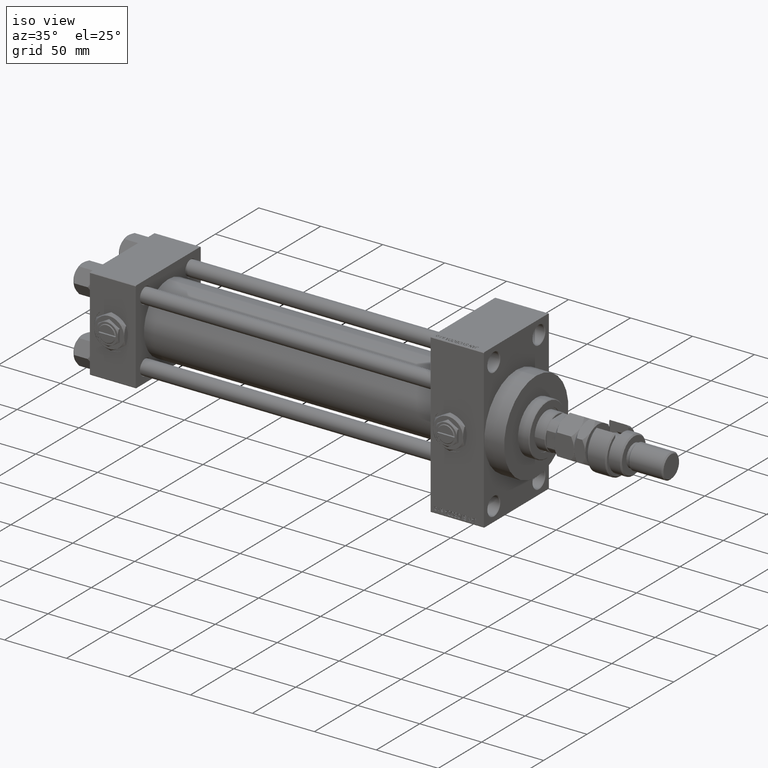
[diagram: clean part render]
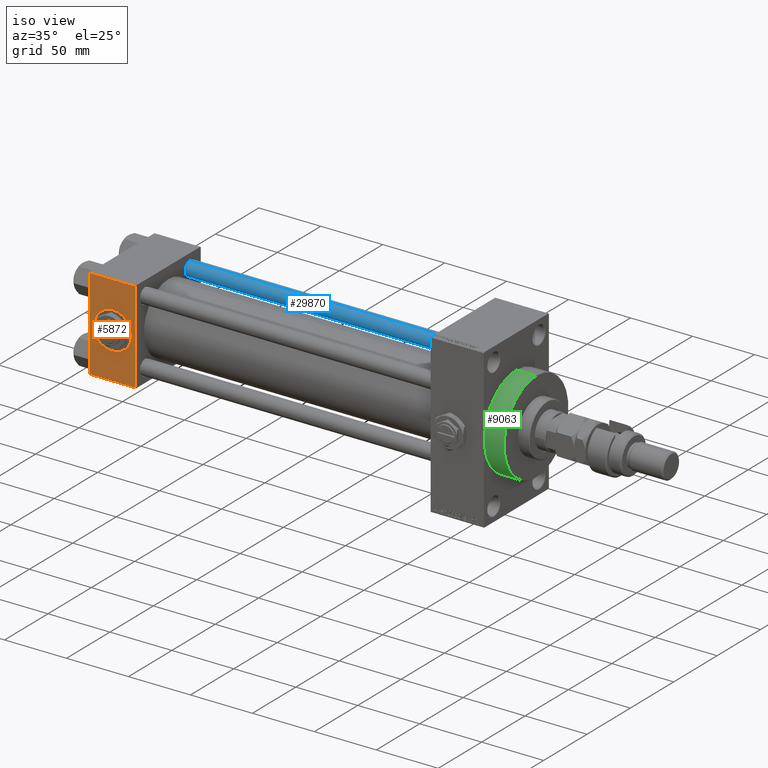
[diagram: same view with three faces highlighted in distinct colors, each labeled with its STEP entity id]
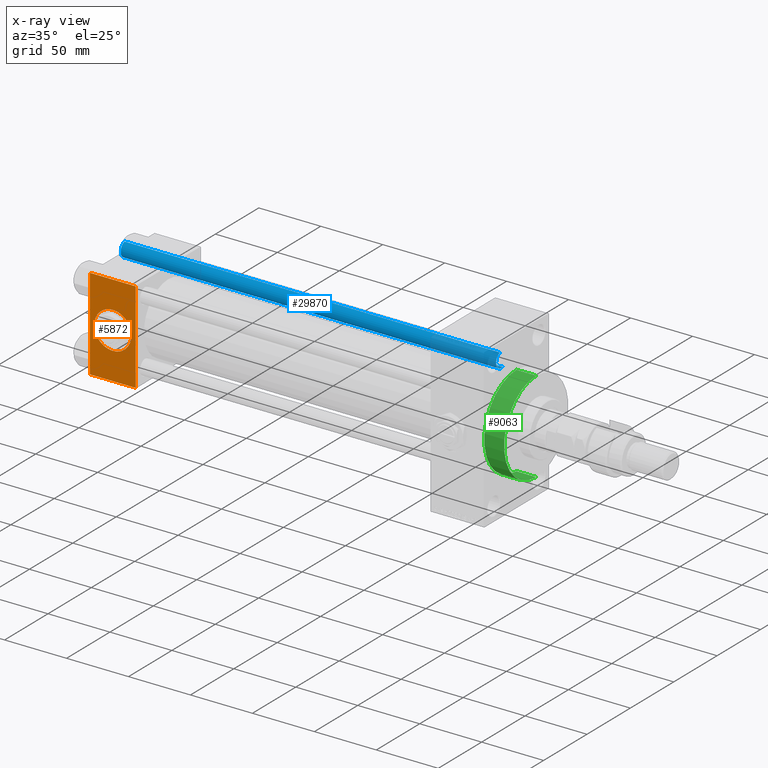
[diagram: x-ray of the same camera — body ghosted, the three highlighted faces saturated]
A machine part, iso view with three faces highlighted in distinct colors.
The next image is the same camera in x-ray (body ghosted, the three faces saturated) — at least one of them is partly hidden behind the body in this view.
Their STEP definitions:

[orange] entity #5872 — the highlighted planar face has unit normal (0, 1, 0).
#1952 = PLANE ( 'NONE',  #24143 ) ;
#2936 = EDGE_CURVE ( 'NONE', #6133, #47609, #31394, .T. ) ;
#4494 = EDGE_LOOP ( 'NONE', ( #49177, #29700, #4947, #6486 ) ) ;
#4947 = ORIENTED_EDGE ( 'NONE', *, *, #31148, .F. ) ;
#5872 = ADVANCED_FACE ( 'NONE', ( #38326, #21499 ), #1952, .F. ) ;
#6133 = VERTEX_POINT ( 'NONE', #49576 ) ;
#6382 = DIRECTION ( 'NONE',  ( 0.000000000000000000, 0.000000000000000000, -1.000000000000000000 ) ) ;
#6486 = ORIENTED_EDGE ( 'NONE', *, *, #29505, .T. ) ;
#7141 = DIRECTION ( 'NONE',  ( 1.000000000000000000, 0.000000000000000000, 0.000000000000000000 ) ) ;
#8477 = VERTEX_POINT ( 'NONE', #13896 ) ;
#9231 = AXIS2_PLACEMENT_3D ( 'NONE', #50673, #31160, #6382 ) ;
#9978 = VECTOR ( 'NONE', #46848, 1000.000000000000000 ) ;
#11551 = CARTESIAN_POINT ( 'NONE',  ( 0.000000000000000000, -37.50000000000000711, 36.99999999999999289 ) ) ;
#13087 = CIRCLE ( 'NONE', #15600, 15.00000000000000178 ) ;
#13605 = DIRECTION ( 'NONE',  ( 0.000000000000000000, -9.251858538542971581E-17, 1.000000000000000000 ) ) ;
#13896 = CARTESIAN_POINT ( 'NONE',  ( 37.00000000000000000, -37.50000000000000711, 36.99999999999999289 ) ) ;
#14463 = CARTESIAN_POINT ( 'NONE',  ( 37.00000000000000000, -37.50000000000000000, -37.00000000000003553 ) ) ;
#14965 = ORIENTED_EDGE ( 'NONE', *, *, #51020, .F. ) ;
#15203 = LINE ( 'NONE', #25557, #16577 ) ;
#15600 = AXIS2_PLACEMENT_3D ( 'NONE', #21142, #29805, #25850 ) ;
#16577 = VECTOR ( 'NONE', #49544, 1000.000000000000000 ) ;
#17815 = DIRECTION ( 'NONE',  ( -0.000000000000000000, 1.000000000000000000, 9.251858538542971581E-17 ) ) ;
#21142 = CARTESIAN_POINT ( 'NONE',  ( 18.50000000000000000, -37.50000000000000711, -3.469446951953614978E-15 ) ) ;
#21499 = FACE_OUTER_BOUND ( 'NONE', #4494, .T. ) ;
#22320 = VECTOR ( 'NONE', #7141, 1000.000000000000000 ) ;
#24143 = AXIS2_PLACEMENT_3D ( 'NONE', #30178, #17815, #13605 ) ;
#25557 = CARTESIAN_POINT ( 'NONE',  ( 0.000000000000000000, -37.50000000000000711, 37.49999999999999289 ) ) ;
#25850 = DIRECTION ( 'NONE',  ( 0.000000000000000000, 0.000000000000000000, -1.000000000000000000 ) ) ;
#26373 = CARTESIAN_POINT ( 'NONE',  ( 18.50000000000000000, -37.50000000000000711, -15.00000000000000533 ) ) ;
#29505 = EDGE_CURVE ( 'NONE', #8477, #42677, #34192, .T. ) ;
#29700 = ORIENTED_EDGE ( 'NONE', *, *, #2936, .T. ) ;
#29805 = DIRECTION ( 'NONE',  ( 0.000000000000000000, -1.000000000000000000, -8.673617379884036705E-17 ) ) ;
#30178 = CARTESIAN_POINT ( 'NONE',  ( 37.00000000000000000, -37.50000000000000711, 37.49999999999999289 ) ) ;
#31148 = EDGE_CURVE ( 'NONE', #8477, #47609, #35118, .T. ) ;
#31160 = DIRECTION ( 'NONE',  ( 0.000000000000000000, -1.000000000000000000, -8.673617379884036705E-17 ) ) ;
#31394 = LINE ( 'NONE', #40086, #22320 ) ;
#34192 = LINE ( 'NONE', #39452, #9978 ) ;
#35118 = LINE ( 'NONE', #50672, #41089 ) ;
#35941 = VERTEX_POINT ( 'NONE', #42245 ) ;
#38286 = DIRECTION ( 'NONE',  ( 0.000000000000000000, 9.251858538542971581E-17, -1.000000000000000000 ) ) ;
#38326 = FACE_BOUND ( 'NONE', #44812, .T. ) ;
#38684 = EDGE_CURVE ( 'NONE', #39533, #35941, #13087, .T. ) ;
#39452 = CARTESIAN_POINT ( 'NONE',  ( 37.00000000000000000, -37.50000000000000711, 36.99999999999999289 ) ) ;
#39533 = VERTEX_POINT ( 'NONE', #26373 ) ;
#40086 = CARTESIAN_POINT ( 'NONE',  ( 37.00000000000000000, -37.50000000000000000, -37.00000000000003553 ) ) ;
#41089 = VECTOR ( 'NONE', #38286, 1000.000000000000000 ) ;
#42077 = CIRCLE ( 'NONE', #9231, 15.00000000000000178 ) ;
#42245 = CARTESIAN_POINT ( 'NONE',  ( 18.50000000000000355, -37.50000000000000711, 14.99999999999999822 ) ) ;
#42677 = VERTEX_POINT ( 'NONE', #11551 ) ;
#43714 = EDGE_CURVE ( 'NONE', #42677, #6133, #15203, .T. ) ;
#44812 = EDGE_LOOP ( 'NONE', ( #46846, #14965 ) ) ;
#46846 = ORIENTED_EDGE ( 'NONE', *, *, #38684, .F. ) ;
#46848 = DIRECTION ( 'NONE',  ( -1.000000000000000000, 0.000000000000000000, 0.000000000000000000 ) ) ;
#47609 = VERTEX_POINT ( 'NONE', #14463 ) ;
#49177 = ORIENTED_EDGE ( 'NONE', *, *, #43714, .T. ) ;
#49544 = DIRECTION ( 'NONE',  ( 0.000000000000000000, 9.251858538542971581E-17, -1.000000000000000000 ) ) ;
#49576 = CARTESIAN_POINT ( 'NONE',  ( 0.000000000000000000, -37.50000000000000000, -37.00000000000003553 ) ) ;
#50672 = CARTESIAN_POINT ( 'NONE',  ( 37.00000000000000000, -37.50000000000000711, 37.49999999999999289 ) ) ;
#50673 = CARTESIAN_POINT ( 'NONE',  ( 18.50000000000000000, -37.50000000000000711, -3.469446951953614978E-15 ) ) ;
#51020 = EDGE_CURVE ( 'NONE', #35941, #39533, #42077, .T. ) ;

[blue] entity #29870 — the highlighted cylindrical surface (edge-blend (fillet) strip) has radius 6 mm, axis along (-1, -0, 0).
#1456 = DIRECTION ( 'NONE',  ( -1.000000000000000000, 0.000000000000000000, 0.000000000000000000 ) ) ;
#1531 = AXIS2_PLACEMENT_3D ( 'NONE', #12843, #37071, #4908 ) ;
#3691 = CARTESIAN_POINT ( 'NONE',  ( 0.000000000000000000, 0.000000000000000000, 0.4999999999999449329 ) ) ;
#4908 = DIRECTION ( 'NONE',  ( 1.000000000000000000, 0.000000000000000000, 0.000000000000000000 ) ) ;
#5161 = DIRECTION ( 'NONE',  ( -0.000000000000000000, -0.000000000000000000, -1.000000000000000000 ) ) ;
#5748 = AXIS2_PLACEMENT_3D ( 'NONE', #13869, #5161, #1456 ) ;
#6582 = AXIS2_PLACEMENT_3D ( 'NONE', #3691, #28486, #36127 ) ;
#9400 = EDGE_CURVE ( 'NONE', #47213, #23657, #47018, .T. ) ;
#12843 = CARTESIAN_POINT ( 'NONE',  ( 0.000000000000000000, 0.000000000000000000, 303.5000000000000000 ) ) ;
#13310 = LINE ( 'NONE', #29110, #29062 ) ;
#13728 = EDGE_LOOP ( 'NONE', ( #37493, #19237, #31968, #34852 ) ) ;
#13869 = CARTESIAN_POINT ( 'NONE',  ( 0.000000000000000000, 0.000000000000000000, 304.0000000000000000 ) ) ;
#18235 = CARTESIAN_POINT ( 'NONE',  ( 6.000000000000000888, 7.347880794884120722E-16, 0.4999999999999449329 ) ) ;
#19237 = ORIENTED_EDGE ( 'NONE', *, *, #29847, .T. ) ;
#21264 = FACE_OUTER_BOUND ( 'NONE', #13728, .T. ) ;
#21515 = CYLINDRICAL_SURFACE ( 'NONE', #5748, 6.000000000000000888 ) ;
#21553 = CARTESIAN_POINT ( 'NONE',  ( -6.000000000000000888, 0.000000000000000000, 303.5000000000000000 ) ) ;
#23657 = VERTEX_POINT ( 'NONE', #18235 ) ;
#24284 = CIRCLE ( 'NONE', #1531, 6.000000000000000888 ) ;
#24373 = CARTESIAN_POINT ( 'NONE',  ( -6.000000000000000888, 0.000000000000000000, 0.4999999999999449329 ) ) ;
#28486 = DIRECTION ( 'NONE',  ( -0.000000000000000000, -0.000000000000000000, 1.000000000000000000 ) ) ;
#29062 = VECTOR ( 'NONE', #45708, 1000.000000000000000 ) ;
#29110 = CARTESIAN_POINT ( 'NONE',  ( 6.000000000000000888, 7.347880794884120722E-16, 304.0000000000000000 ) ) ;
#29847 = EDGE_CURVE ( 'NONE', #41499, #33379, #24284, .T. ) ;
#29870 = ADVANCED_FACE ( 'NONE', ( #21264 ), #21515, .T. ) ;
#31286 = CARTESIAN_POINT ( 'NONE',  ( 6.000000000000000888, 7.347880794884120722E-16, 303.5000000000000000 ) ) ;
#31968 = ORIENTED_EDGE ( 'NONE', *, *, #40066, .T. ) ;
#33379 = VERTEX_POINT ( 'NONE', #21553 ) ;
#34086 = LINE ( 'NONE', #50171, #40941 ) ;
#34852 = ORIENTED_EDGE ( 'NONE', *, *, #9400, .T. ) ;
#36127 = DIRECTION ( 'NONE',  ( 1.000000000000000000, 0.000000000000000000, 0.000000000000000000 ) ) ;
#37071 = DIRECTION ( 'NONE',  ( 0.000000000000000000, 0.000000000000000000, -1.000000000000000000 ) ) ;
#37493 = ORIENTED_EDGE ( 'NONE', *, *, #38250, .F. ) ;
#38250 = EDGE_CURVE ( 'NONE', #41499, #23657, #13310, .T. ) ;
#40066 = EDGE_CURVE ( 'NONE', #33379, #47213, #34086, .T. ) ;
#40941 = VECTOR ( 'NONE', #46234, 1000.000000000000000 ) ;
#41499 = VERTEX_POINT ( 'NONE', #31286 ) ;
#45708 = DIRECTION ( 'NONE',  ( -0.000000000000000000, -0.000000000000000000, -1.000000000000000000 ) ) ;
#46234 = DIRECTION ( 'NONE',  ( -0.000000000000000000, -0.000000000000000000, -1.000000000000000000 ) ) ;
#47018 = CIRCLE ( 'NONE', #6582, 6.000000000000000888 ) ;
#47213 = VERTEX_POINT ( 'NONE', #24373 ) ;
#50171 = CARTESIAN_POINT ( 'NONE',  ( -6.000000000000000888, 0.000000000000000000, 304.0000000000000000 ) ) ;

[green] entity #9063 — the highlighted cylindrical surface (partial cylindrical patch) has radius 37 mm, axis along (-1, -0, -0).
#68 = CYLINDRICAL_SURFACE ( 'NONE', #52010, 37.00000000000000000 ) ;
#4801 = LINE ( 'NONE', #16965, #35670 ) ;
#5440 = DIRECTION ( 'NONE',  ( 1.000000000000000000, 0.000000000000000000, 0.000000000000000000 ) ) ;
#7463 = FACE_OUTER_BOUND ( 'NONE', #38955, .T. ) ;
#8250 = DIRECTION ( 'NONE',  ( -1.000000000000000000, -0.000000000000000000, -0.000000000000000000 ) ) ;
#8407 = CARTESIAN_POINT ( 'NONE',  ( 317.9999999999999432, 0.000000000000000000, 37.00000000000000000 ) ) ;
#9063 = ADVANCED_FACE ( 'NONE', ( #7463 ), #68, .T. ) ;
#13767 = EDGE_CURVE ( 'NONE', #38214, #22382, #17938, .T. ) ;
#15788 = AXIS2_PLACEMENT_3D ( 'NONE', #37276, #40705, #25413 ) ;
#16033 = EDGE_CURVE ( 'NONE', #22382, #30473, #4801, .T. ) ;
#16220 = CARTESIAN_POINT ( 'NONE',  ( 333.9999999999999432, 0.000000000000000000, 37.00000000000000000 ) ) ;
#16965 = CARTESIAN_POINT ( 'NONE',  ( 333.9999999999999432, 4.531193156845206793E-15, -37.00000000000000000 ) ) ;
#17938 = CIRCLE ( 'NONE', #44009, 37.00000000000000000 ) ;
#18219 = VERTEX_POINT ( 'NONE', #8407 ) ;
#19670 = ORIENTED_EDGE ( 'NONE', *, *, #42115, .T. ) ;
#21292 = CARTESIAN_POINT ( 'NONE',  ( 333.9999999999999432, 0.000000000000000000, 0.000000000000000000 ) ) ;
#22382 = VERTEX_POINT ( 'NONE', #50434 ) ;
#24311 = ORIENTED_EDGE ( 'NONE', *, *, #16033, .F. ) ;
#25026 = VECTOR ( 'NONE', #28119, 1000.000000000000000 ) ;
#25413 = DIRECTION ( 'NONE',  ( 0.000000000000000000, 0.000000000000000000, -1.000000000000000000 ) ) ;
#28119 = DIRECTION ( 'NONE',  ( -1.000000000000000000, -0.000000000000000000, -0.000000000000000000 ) ) ;
#28378 = LINE ( 'NONE', #44473, #25026 ) ;
#28670 = DIRECTION ( 'NONE',  ( 0.000000000000000000, 0.000000000000000000, -1.000000000000000000 ) ) ;
#29707 = EDGE_CURVE ( 'NONE', #38214, #18219, #28378, .T. ) ;
#30473 = VERTEX_POINT ( 'NONE', #40625 ) ;
#31760 = CIRCLE ( 'NONE', #15788, 37.00000000000000000 ) ;
#32487 = DIRECTION ( 'NONE',  ( 0.000000000000000000, 0.000000000000000000, 1.000000000000000000 ) ) ;
#33937 = ORIENTED_EDGE ( 'NONE', *, *, #13767, .F. ) ;
#35670 = VECTOR ( 'NONE', #8250, 1000.000000000000000 ) ;
#37276 = CARTESIAN_POINT ( 'NONE',  ( 317.9999999999999432, 0.000000000000000000, 0.000000000000000000 ) ) ;
#38214 = VERTEX_POINT ( 'NONE', #16220 ) ;
#38955 = EDGE_LOOP ( 'NONE', ( #24311, #33937, #42880, #19670 ) ) ;
#40408 = CARTESIAN_POINT ( 'NONE',  ( 333.9999999999999432, 0.000000000000000000, 0.000000000000000000 ) ) ;
#40625 = CARTESIAN_POINT ( 'NONE',  ( 317.9999999999999432, 4.531193156845206793E-15, -37.00000000000000000 ) ) ;
#40705 = DIRECTION ( 'NONE',  ( 1.000000000000000000, 0.000000000000000000, 0.000000000000000000 ) ) ;
#42115 = EDGE_CURVE ( 'NONE', #18219, #30473, #31760, .T. ) ;
#42880 = ORIENTED_EDGE ( 'NONE', *, *, #29707, .T. ) ;
#43852 = DIRECTION ( 'NONE',  ( -1.000000000000000000, -0.000000000000000000, -0.000000000000000000 ) ) ;
#44009 = AXIS2_PLACEMENT_3D ( 'NONE', #21292, #5440, #28670 ) ;
#44473 = CARTESIAN_POINT ( 'NONE',  ( 333.9999999999999432, 0.000000000000000000, 37.00000000000000000 ) ) ;
#50434 = CARTESIAN_POINT ( 'NONE',  ( 333.9999999999999432, 4.531193156845206793E-15, -37.00000000000000000 ) ) ;
#52010 = AXIS2_PLACEMENT_3D ( 'NONE', #40408, #43852, #32487 ) ;